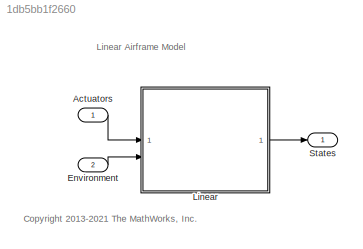
MODEL slx_1db5bb1f2660
KIND model
CONFIG AbsTol = auto
CONFIG EnableMultiTasking = on
CONFIG FixedStep = Ts
CONFIG MaxStep = auto
CONFIG MinStep = auto
CONFIG RelTol = 1e-3
CONFIG SampleTimeConstraint = Unconstrained
CONFIG SolverName = ode3
CONFIG StartTime = 0.0
CONFIG StopTime = 10.0
BLOCK [Inport] Actuators
BLOCK [Inport] Environment
  BusOutputAsStruct = on
  OutDataTypeStr = Bus: EnvironmentBus
  Port = 2
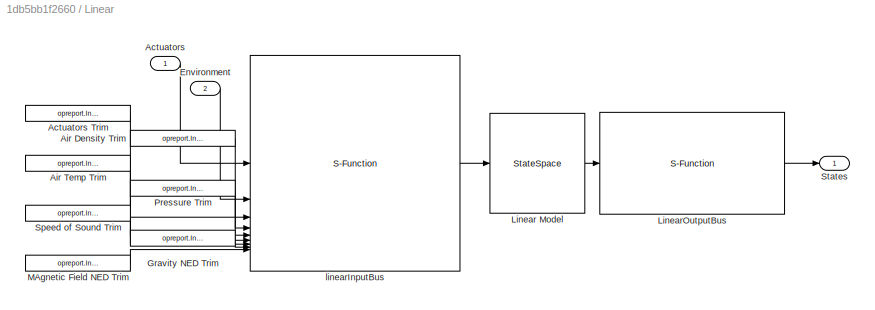
BLOCK [SubSystem] Linear
  TreatAsAtomicUnit = on
BLOCK [Inport] Linear/Actuators
BLOCK [Constant] Linear/Actuators Trim
  Value = opreport.Inputs(1).u
BLOCK [Constant] Linear/Air Density Trim
  Value = opreport.Inputs(6).u
BLOCK [Constant] Linear/Air Temp Trim
  Value = opreport.Inputs(3).u
BLOCK [Inport] Linear/Environment
  OutDataTypeStr = Bus: EnvironmentBus
  Port = 2
BLOCK [Constant] Linear/Gravity NED Trim
  Value = opreport.Inputs(2).u
BLOCK [StateSpace] Linear/Linear Model
  A = linsys.a
  B = linsys.b
  C = linsys.c
  D = linsys.d
  InitialCondition = zeros(length(linsys.a),1)
BLOCK [S-Function] Linear/LinearOutputBus
  CopyFcn = set_param(gcbh,'LinkStatus','none')
  EnableBusSupport = off
  FunctionName = linearOutputBus
  InitFcn = try, set_param(gcb,'FunctionName','linearOutputBus'), end
  OpenFcn = sfunctionwizard(gcbh)
  PreSaveFcn = try, set_param(gcb,'FunctionName','linearOutputBus'), end
  SFcnIsStateOwnerBlock = off
  SFunctionDeploymentMode = off
  SFunctionModules = linearOutputBus_wrapper
BLOCK [Constant] Linear/MAgnetic Field NED Trim
  Value = opreport.Inputs(7).u
BLOCK [Constant] Linear/Pressure Trim
  Value = opreport.Inputs(5).u
BLOCK [Constant] Linear/Speed of Sound Trim
  Value = opreport.Inputs(4).u
BLOCK [Outport] Linear/States
  OutDataTypeStr = Bus: StatesBus
  VectorParamsAs1DForOutWhenUnconnected = off
BLOCK [S-Function] Linear/linearInputBus
  CopyFcn = set_param(gcbh,'LinkStatus','none')
  EnableBusSupport = off
  FunctionName = linearInputBus
  InitFcn = try, set_param(gcb,'FunctionName','linearInputBus'), end
  OpenFcn = sfunctionwizard(gcbh)
  PreSaveFcn = try, set_param(gcb,'FunctionName','linearInputBus'), end
  SFcnIsStateOwnerBlock = off
  SFunctionDeploymentMode = off
  SFunctionModules = linearInputBus_wrapper
BLOCK [Outport] States
  BusOutputAsStruct = on
  OutDataTypeStr = Bus: StatesBus
  VectorParamsAs1DForOutWhenUnconnected = off
ANNOTATION (root): <copyright redacted>
ANNOTATION (root): Linear Airframe Model
LINE Actuators:1 -> Linear:1
LINE Environment:1 -> Linear:2
LINE Linear/Actuators Trim:1 -> Linear/linearInputBus:3
LINE Linear/Actuators:1 -> Linear/linearInputBus:1
LINE Linear/Air Density Trim:1 -> Linear/linearInputBus:4
LINE Linear/Air Temp Trim:1 -> Linear/linearInputBus:5
LINE Linear/Environment:1 -> Linear/linearInputBus:2
LINE Linear/Gravity NED Trim:1 -> Linear/linearInputBus:8
LINE Linear/Linear Model:1 -> Linear/LinearOutputBus:1
LINE Linear/LinearOutputBus:1 -> Linear/States:1
LINE Linear/MAgnetic Field NED Trim:1 -> Linear/linearInputBus:9
LINE Linear/Pressure Trim:1 -> Linear/linearInputBus:6
LINE Linear/Speed of Sound Trim:1 -> Linear/linearInputBus:7
LINE Linear/linearInputBus:1 -> Linear/Linear Model:1
LINE Linear:1 -> States:1
